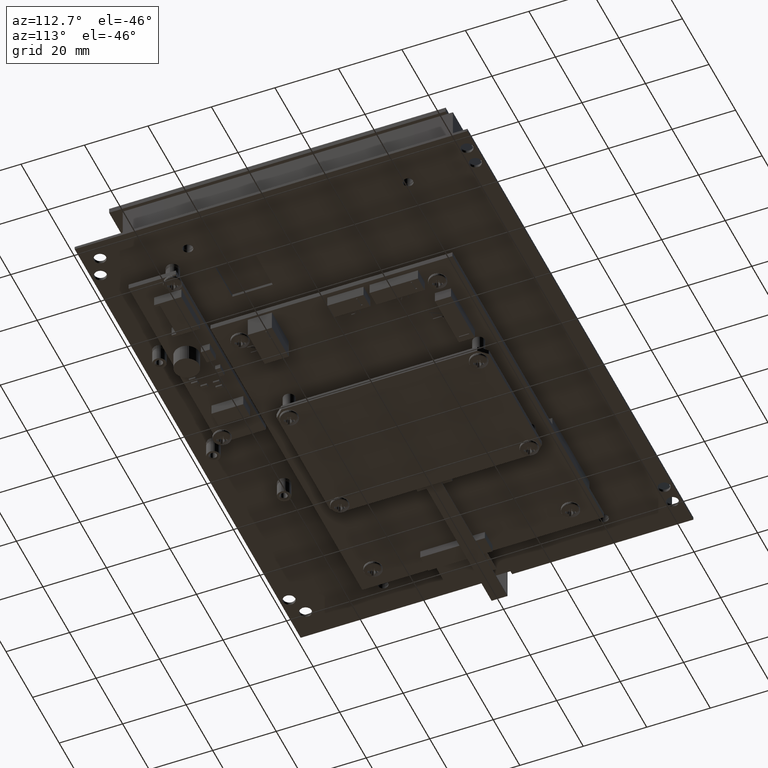
[diagram: clean part render]
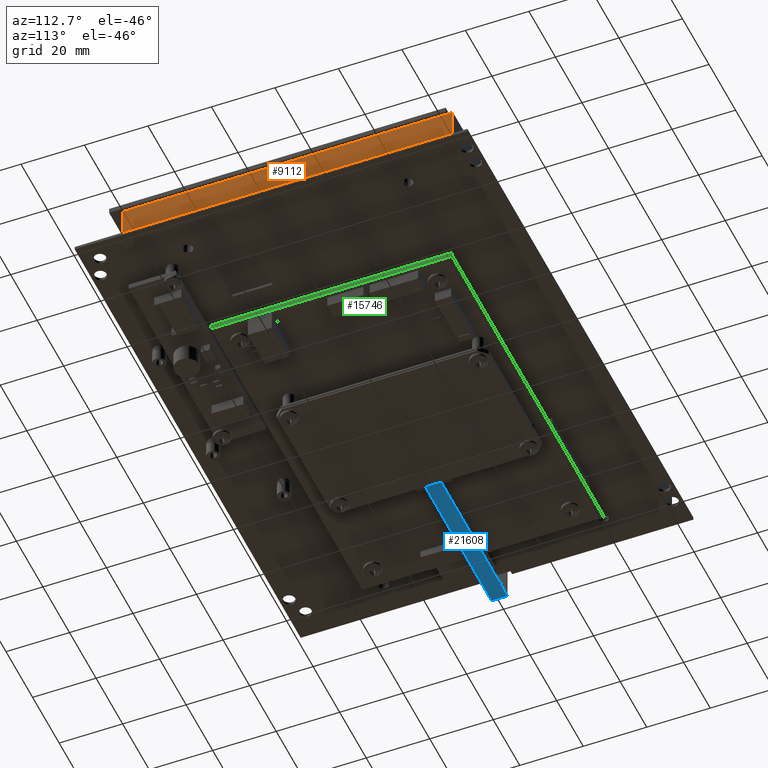
[diagram: same view with three faces highlighted in distinct colors, each labeled with its STEP entity id]
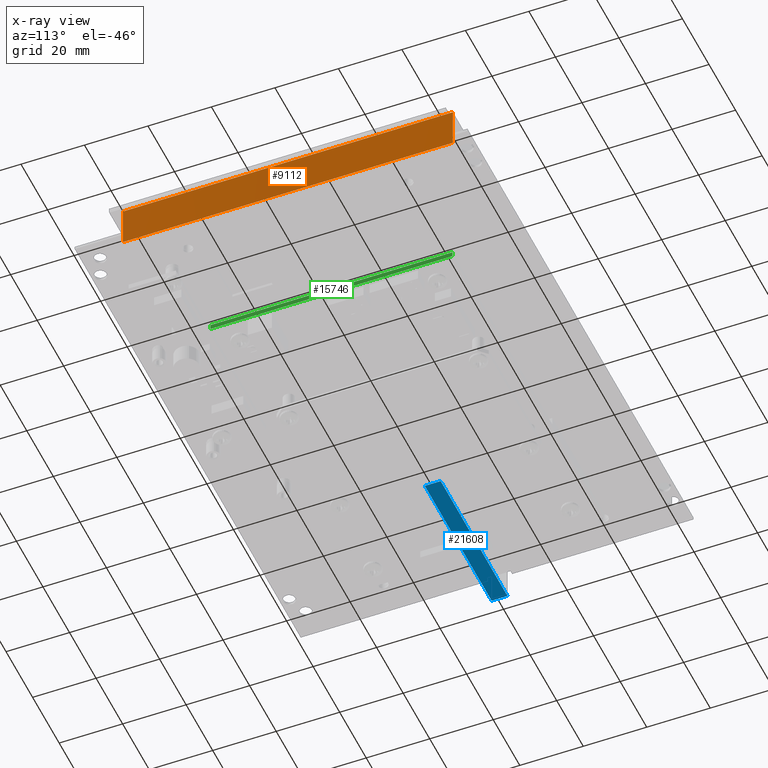
[diagram: x-ray of the same camera — body ghosted, the three highlighted faces saturated]
A machine part, auxiliary view with three faces highlighted in distinct colors.
The next image is the same camera in x-ray (body ghosted, the three faces saturated) — at least one of them is partly hidden behind the body in this view.
Their STEP definitions:

[orange] entity #9112 — the highlighted planar face has unit normal (-1, 0, 0).
#789 = CARTESIAN_POINT ( 'NONE',  ( 3.248031496062992600, 2.047244094488188400, 0.5039370078740157400 ) ) ;
#797 = FACE_OUTER_BOUND ( 'NONE', #22970, .T. ) ;
#798 = PLANE ( 'NONE',  #11759 ) ;
#800 = DIRECTION ( 'NONE',  ( -1.000000000000000000, 0.0000000000000000000, 0.0000000000000000000 ) ) ;
#801 = DIRECTION ( 'NONE',  ( 0.0000000000000000000, 0.0000000000000000000, 1.000000000000000000 ) ) ;
#9112 = ADVANCED_FACE ( 'NONE', ( #797 ), #798, .F. ) ;
#9428 = EDGE_CURVE ( 'NONE', #22668, #22663, #10150, .T. ) ;
#9437 = EDGE_CURVE ( 'NONE', #22670, #22668, #10186, .T. ) ;
#9439 = EDGE_CURVE ( 'NONE', #22674, #22663, #10192, .T. ) ;
#9440 = EDGE_CURVE ( 'NONE', #22670, #22674, #10195, .T. ) ;
#9879 = VECTOR ( 'NONE', #10162, 39.37007874015748100 ) ;
#9889 = VECTOR ( 'NONE', #10188, 39.37007874015748100 ) ;
#9891 = VECTOR ( 'NONE', #10194, 39.37007874015748100 ) ;
#9892 = VECTOR ( 'NONE', #10197, 39.37007874015748100 ) ;
#10150 = LINE ( 'NONE', #10160, #9879 ) ;
#10160 = CARTESIAN_POINT ( 'NONE',  ( 3.248031496062992600, 2.047244094488188400, 0.0000000000000000000 ) ) ;
#10162 = DIRECTION ( 'NONE',  ( -0.0000000000000000000, 1.000000000000000000, -0.0000000000000000000 ) ) ;
#10186 = LINE ( 'NONE', #10187, #9889 ) ;
#10187 = CARTESIAN_POINT ( 'NONE',  ( 3.248031496062992600, -2.047244094488188400, 0.5039370078740157400 ) ) ;
#10188 = DIRECTION ( 'NONE',  ( -0.0000000000000000000, -0.0000000000000000000, -1.000000000000000000 ) ) ;
#10192 = LINE ( 'NONE', #10193, #9891 ) ;
#10193 = CARTESIAN_POINT ( 'NONE',  ( 3.248031496062992600, 2.047244094488188400, 0.5039370078740157400 ) ) ;
#10194 = DIRECTION ( 'NONE',  ( -0.0000000000000000000, -0.0000000000000000000, -1.000000000000000000 ) ) ;
#10195 = LINE ( 'NONE', #10196, #9892 ) ;
#10196 = CARTESIAN_POINT ( 'NONE',  ( 3.248031496062992600, 2.047244094488188400, 0.5039370078740157400 ) ) ;
#10197 = DIRECTION ( 'NONE',  ( -0.0000000000000000000, 1.000000000000000000, -0.0000000000000000000 ) ) ;
#11759 = AXIS2_PLACEMENT_3D ( 'NONE', #789, #800, #801 ) ;
#15233 = ORIENTED_EDGE ( 'NONE', *, *, #9428, .T. ) ;
#15234 = ORIENTED_EDGE ( 'NONE', *, *, #9439, .F. ) ;
#15235 = ORIENTED_EDGE ( 'NONE', *, *, #9440, .F. ) ;
#15236 = ORIENTED_EDGE ( 'NONE', *, *, #9437, .T. ) ;
#19845 = CARTESIAN_POINT ( 'NONE',  ( 3.248031496062992600, 2.047244094488188400, 0.0000000000000000000 ) ) ;
#19850 = CARTESIAN_POINT ( 'NONE',  ( 3.248031496062992600, -2.047244094488188400, 0.0000000000000000000 ) ) ;
#19852 = CARTESIAN_POINT ( 'NONE',  ( 3.248031496062992600, -2.047244094488188400, 0.5039370078740157400 ) ) ;
#19856 = CARTESIAN_POINT ( 'NONE',  ( 3.248031496062992600, 2.047244094488188400, 0.5039370078740157400 ) ) ;
#22663 = VERTEX_POINT ( 'NONE', #19845 ) ;
#22668 = VERTEX_POINT ( 'NONE', #19850 ) ;
#22670 = VERTEX_POINT ( 'NONE', #19852 ) ;
#22674 = VERTEX_POINT ( 'NONE', #19856 ) ;
#22970 = EDGE_LOOP ( 'NONE', ( #15233, #15234, #15235, #15236 ) ) ;

[blue] entity #21608 — the highlighted planar face has unit normal (0, -0, -1).
#2777 = EDGE_CURVE ( 'NONE', #9707, #9716, #4432, .T. ) ;
#2780 = EDGE_CURVE ( 'NONE', #9717, #9719, #4433, .T. ) ;
#2786 = EDGE_CURVE ( 'NONE', #9707, #9717, #4452, .T. ) ;
#2787 = EDGE_CURVE ( 'NONE', #9716, #9719, #4460, .T. ) ;
#4432 = LINE ( 'NONE', #4434, #12125 ) ;
#4433 = LINE ( 'NONE', #4442, #12127 ) ;
#4434 = CARTESIAN_POINT ( 'NONE',  ( 3.326771653543321600, 0.9566929133858268500, -0.09842519685039459500 ) ) ;
#4435 = DIRECTION ( 'NONE',  ( -1.000000000000000000, -2.289662829294210500E-016, 5.412337245047619400E-016 ) ) ;
#4442 = CARTESIAN_POINT ( 'NONE',  ( 3.326771653543321600, 0.9566929133858268500, 0.09842519685039281800 ) ) ;
#4443 = DIRECTION ( 'NONE',  ( -1.000000000000000000, -2.289662829294210500E-016, 5.412337245047619400E-016 ) ) ;
#4452 = LINE ( 'NONE', #4458, #12133 ) ;
#4458 = CARTESIAN_POINT ( 'NONE',  ( 3.338582677165368800, 0.9566929133858268500, -0.09842519685039459500 ) ) ;
#4459 = DIRECTION ( 'NONE',  ( -5.412337245047652900E-016, 1.027264941827654800E-015, 1.000000000000000000 ) ) ;
#4460 = LINE ( 'NONE', #4461, #12135 ) ;
#4461 = CARTESIAN_POINT ( 'NONE',  ( 1.358267716535440400, 0.9566929133858266300, -0.09842519685039348400 ) ) ;
#4462 = DIRECTION ( 'NONE',  ( -5.412337245047652900E-016, 1.027264941827654800E-015, 1.000000000000000000 ) ) ;
#8459 = AXIS2_PLACEMENT_3D ( 'NONE', #14163, #14184, #14186 ) ;
#9518 = EDGE_LOOP ( 'NONE', ( #17968, #17970, #17972, #17974 ) ) ;
#9707 = VERTEX_POINT ( 'NONE', #10332 ) ;
#9716 = VERTEX_POINT ( 'NONE', #10341 ) ;
#9717 = VERTEX_POINT ( 'NONE', #10342 ) ;
#9719 = VERTEX_POINT ( 'NONE', #10344 ) ;
#10332 = CARTESIAN_POINT ( 'NONE',  ( 3.338582677165368800, 0.9566929133858268500, -0.09842519685039459500 ) ) ;
#10341 = CARTESIAN_POINT ( 'NONE',  ( 1.358267716535440400, 0.9566929133858266300, -0.09842519685039348400 ) ) ;
#10342 = CARTESIAN_POINT ( 'NONE',  ( 3.338582677165368800, 0.9566929133858268500, 0.09842519685039281800 ) ) ;
#10344 = CARTESIAN_POINT ( 'NONE',  ( 1.358267716535440400, 0.9566929133858266300, 0.09842519685039370600 ) ) ;
#12125 = VECTOR ( 'NONE', #4435, 39.37007874015748100 ) ;
#12127 = VECTOR ( 'NONE', #4443, 39.37007874015748100 ) ;
#12133 = VECTOR ( 'NONE', #4459, 39.37007874015748100 ) ;
#12135 = VECTOR ( 'NONE', #4462, 39.37007874015748100 ) ;
#14163 = CARTESIAN_POINT ( 'NONE',  ( 3.326771653543321600, 0.9566929133858268500, -0.09842519685039459500 ) ) ;
#14178 = FACE_OUTER_BOUND ( 'NONE', #9518, .T. ) ;
#14180 = PLANE ( 'NONE',  #8459 ) ;
#14184 = DIRECTION ( 'NONE',  ( -2.289662829294205100E-016, 1.000000000000000000, 1.027264941827655000E-015 ) ) ;
#14186 = DIRECTION ( 'NONE',  ( -1.000000000000000000, -2.289662829294210500E-016, 5.412337245047620400E-016 ) ) ;
#17968 = ORIENTED_EDGE ( 'NONE', *, *, #2780, .F. ) ;
#17970 = ORIENTED_EDGE ( 'NONE', *, *, #2786, .F. ) ;
#17972 = ORIENTED_EDGE ( 'NONE', *, *, #2777, .T. ) ;
#17974 = ORIENTED_EDGE ( 'NONE', *, *, #2787, .T. ) ;
#21608 = ADVANCED_FACE ( 'NONE', ( #14178 ), #14180, .T. ) ;

[green] entity #15746 — the highlighted planar face has unit normal (-1, -0, -0).
#4697 = CARTESIAN_POINT ( 'NONE',  ( -2.249999999999991100, 5.463695987328526400E-016, 1.499999999999986900 ) ) ;
#4705 = CARTESIAN_POINT ( 'NONE',  ( -2.249999999999991100, 0.06300000000000001400, 1.499999999999986900 ) ) ;
#4728 = CARTESIAN_POINT ( 'NONE',  ( -2.249999999999991100, 0.0000000000000000000, -1.499999999999995800 ) ) ;
#4807 = CARTESIAN_POINT ( 'NONE',  ( -2.249999999999991100, 0.06300000000000001400, -1.499999999999995800 ) ) ;
#5227 = CARTESIAN_POINT ( 'NONE',  ( -2.249999999999991100, 0.06300000000000001400, -1.499999999999995800 ) ) ;
#5230 = LINE ( 'NONE', #5227, #12217 ) ;
#5235 = DIRECTION ( 'NONE',  ( -2.764200274196888700E-030, -1.232595164407839900E-031, 1.000000000000000000 ) ) ;
#6672 = AXIS2_PLACEMENT_3D ( 'NONE', #6957, #6963, #6964 ) ;
#6827 = VECTOR ( 'NONE', #13243, 39.37007874015748100 ) ;
#6838 = VECTOR ( 'NONE', #13275, 39.37007874015748100 ) ;
#6840 = VECTOR ( 'NONE', #13278, 39.37007874015748100 ) ;
#6957 = CARTESIAN_POINT ( 'NONE',  ( -2.249999999999991100, 0.06300000000000001400, -1.499999999999995800 ) ) ;
#6960 = FACE_OUTER_BOUND ( 'NONE', #9536, .T. ) ;
#6961 = PLANE ( 'NONE',  #6672 ) ;
#6963 = DIRECTION ( 'NONE',  ( 1.000000000000000000, 4.437342591868207200E-031, 2.714896467620573700E-030 ) ) ;
#6964 = DIRECTION ( 'NONE',  ( 2.714896467620573700E-030, 1.232595164407839700E-031, -1.000000000000000000 ) ) ;
#8708 = VERTEX_POINT ( 'NONE', #4697 ) ;
#8716 = VERTEX_POINT ( 'NONE', #4705 ) ;
#8739 = VERTEX_POINT ( 'NONE', #4728 ) ;
#8818 = VERTEX_POINT ( 'NONE', #4807 ) ;
#9002 = EDGE_CURVE ( 'NONE', #8818, #8716, #5230, .T. ) ;
#9536 = EDGE_LOOP ( 'NONE', ( #21826, #21794, #21428, #21801 ) ) ;
#12217 = VECTOR ( 'NONE', #5235, 39.37007874015748100 ) ;
#13233 = LINE ( 'NONE', #13241, #6827 ) ;
#13241 = CARTESIAN_POINT ( 'NONE',  ( -2.249999999999991100, 0.0000000000000000000, -1.499999999999995800 ) ) ;
#13243 = DIRECTION ( 'NONE',  ( -2.764200274196888700E-030, -1.232595164407839900E-031, 1.000000000000000000 ) ) ;
#13266 = LINE ( 'NONE', #13274, #6838 ) ;
#13274 = CARTESIAN_POINT ( 'NONE',  ( -2.249999999999991100, 0.06300000000000001400, 1.499999999999986900 ) ) ;
#13275 = DIRECTION ( 'NONE',  ( -1.133987551255208500E-030, -1.000000000000000000, -1.232595164407835300E-031 ) ) ;
#13276 = LINE ( 'NONE', #13277, #6840 ) ;
#13277 = CARTESIAN_POINT ( 'NONE',  ( -2.249999999999991100, 0.06300000000000001400, -1.499999999999995800 ) ) ;
#13278 = DIRECTION ( 'NONE',  ( -1.133987551255208500E-030, -1.000000000000000000, -1.232595164407835300E-031 ) ) ;
#15746 = ADVANCED_FACE ( 'NONE', ( #6960 ), #6961, .F. ) ;
#15952 = EDGE_CURVE ( 'NONE', #8739, #8708, #13233, .T. ) ;
#15963 = EDGE_CURVE ( 'NONE', #8716, #8708, #13266, .T. ) ;
#15964 = EDGE_CURVE ( 'NONE', #8818, #8739, #13276, .T. ) ;
#21428 = ORIENTED_EDGE ( 'NONE', *, *, #9002, .F. ) ;
#21794 = ORIENTED_EDGE ( 'NONE', *, *, #15963, .F. ) ;
#21801 = ORIENTED_EDGE ( 'NONE', *, *, #15964, .T. ) ;
#21826 = ORIENTED_EDGE ( 'NONE', *, *, #15952, .T. ) ;